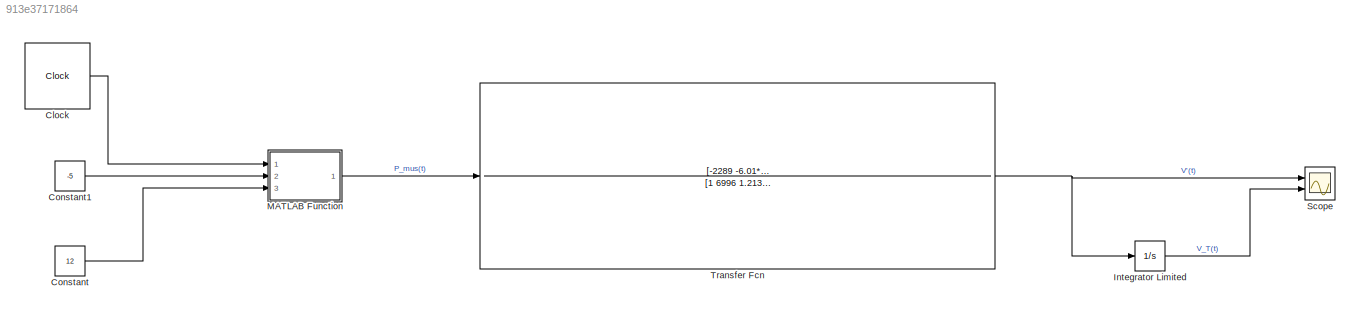
MODEL slx_913e37171864
KIND model
CONFIG AbsTol = 1e-3
CONFIG EnableMultiTasking = off
CONFIG FixedStep = 0.00001
CONFIG MaxStep = auto
CONFIG MinStep = auto
CONFIG RelTol = 1e-3
CONFIG SampleTimeConstraint = Unconstrained
CONFIG Solver = ode1
CONFIG SolverName = ode1
CONFIG StartTime = 0.0
CONFIG StopTime = 60
BLOCK [Clock] Clock
  Decimation = 5
  DisplayTime = on
BLOCK [Constant] Constant
  Value = 12
BLOCK [Constant] Constant1
  Value = -5
BLOCK [Integrator] Integrator Limited
  LimitOutput = on
  LowerSaturationLimit = 0
  Ports = [1, 1]
  UpperSaturationLimit = 1
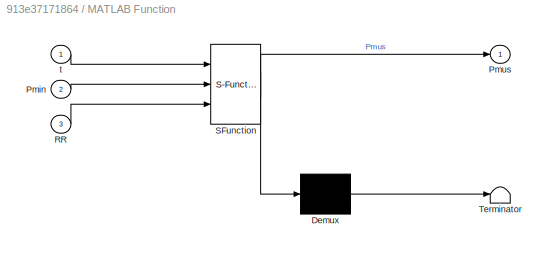
BLOCK [SubSystem] MATLAB Function
  ErrorFcn = Stateflow.Translate.translate
  PermitHierarchicalResolution = ExplicitOnly
  Ports = [3, 1]
  RequestExecContextInheritance = off
  SFBlockType = MATLAB Function
  TreatAsAtomicUnit = on
BLOCK [Demux] MATLAB Function/ Demux 
  Outputs = 1
  Ports = [1, 1]
BLOCK [S-Function] MATLAB Function/ SFunction 
  EnableBusSupport = on
  FunctionName = sf_sfun
  PortCounts = [3 2]
  Ports = [3, 2]
  SFcnIsStateOwnerBlock = off
  SFunctionDeploymentMode = off
  Tag = Stateflow S-Function B1D 2
BLOCK [Terminator] MATLAB Function/ Terminator 
BLOCK [Inport] MATLAB Function/Pmin
  IconDisplay = Port number
  Port = 2
BLOCK [Outport] MATLAB Function/Pmus
  IconDisplay = Port number
BLOCK [Inport] MATLAB Function/RR
  IconDisplay = Port number
  Port = 3
BLOCK [Inport] MATLAB Function/t
  IconDisplay = Port number
BLOCK [Scope] Scope
  Floating = off
  NumInputPorts = 2
  Ports = [2]
  ScopeSpecificationString = Simulink.scopes.TimeScopeBlockCfg('CurrentConfiguration', extmgr.ConfigurationSet(extmgr.Configuration('Core','General UI',true),extmgr.Configuration('Core','Source UI',true),extmgr.Configuration('Sources','WiredSimulink',true),extmgr.Configuration('Visuals','Time Domain',true,'SerializedDisplays',{struct('MinYLimReal','-0.8155','MaxYLimReal','0.48727','YLabelReal','','MinYLimMag','0.00000','MaxYL...<+2170ch>
BLOCK [TransferFcn] Transfer Fcn
  Denominator = [1 6996 1.213*10^7 5.615*10^9 3.273*10^10]
  Numerator = [-2289 -6.01*10^6 -3.193*10^9 0]
LINE Clock:1 -> MATLAB Function:1
LINE Constant1:1 -> MATLAB Function:2
LINE Constant:1 -> MATLAB Function:3
LINE Integrator Limited:1 -> Scope:2
LINE MATLAB Function:1 -> Transfer Fcn:1
NET Transfer Fcn:1 -> Integrator Limited:1, Scope:1
note: NET lines group one-source signal fan-out (src -> all destinations, sorted); 1:1 wires keep LINE
CHART MATLAB Function states=1 transitions=1
  STATE_LABEL 'eML_blk_kernel()'
  STATE_LABEL 'SCRIPT:\nfunction Pmus = fcn(t, Pmin, RR)\nIEratio = 1/2;\nT=(60/RR);\nTe = T / (IEratio + 1);\nTi = IEratio * Te;\ntau=Te/10;\nif (rem(t,T)) < Ti\nu=Pmin*(T*rem(t,T)-rem(t,T)^2)/(Ti*Te);\nelse\nu=Pmin*(exp(-(rem(t,T)-Ti)/tau)-exp(-Te/tau))/(1-exp(-Te/tau));\nend\nPmus = u;\nend'
